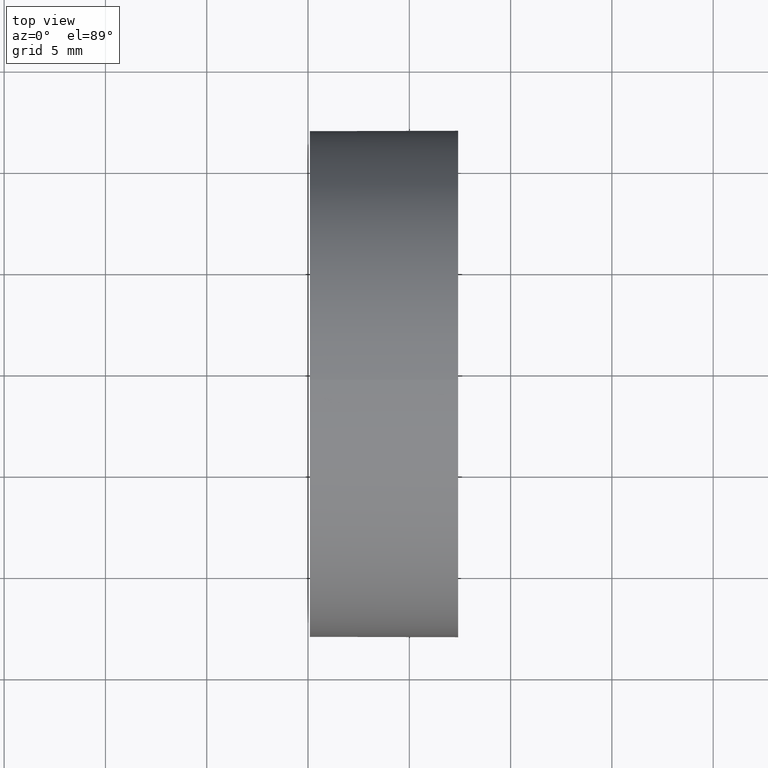
[diagram: clean part render]
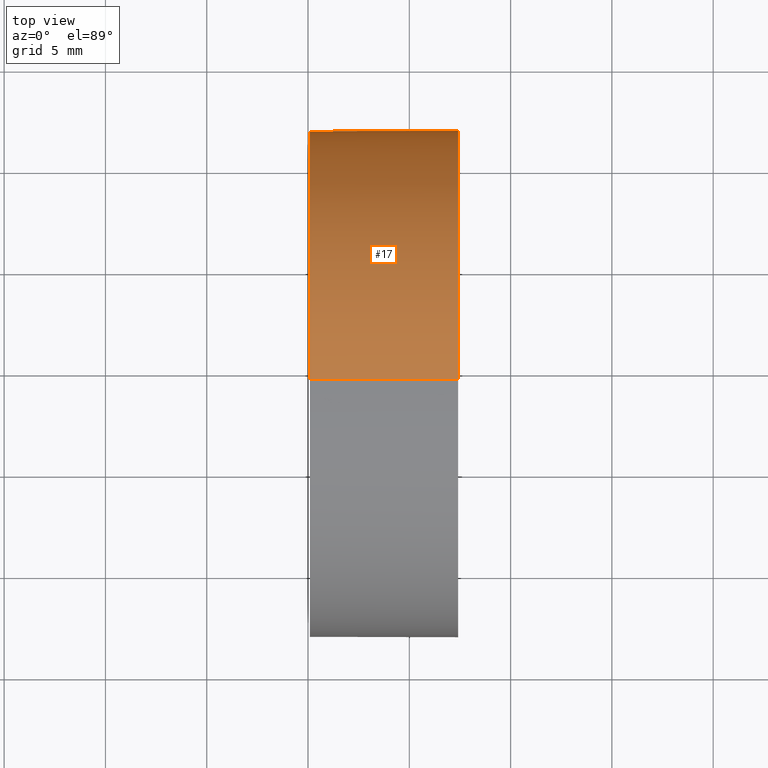
[diagram: same view with one face highlighted and labeled with its STEP entity id]
A machine part, top view. The second image highlights one B-rep face of the part: STEP entity #17.
In plain terms, the highlighted cylindrical surface (partial cylindrical patch) has radius 12.5 mm, axis along (-1, -0, -0).
Its self-contained STEP definition (entity closure, byte-faithful):
#5 = DIRECTION ( 'NONE',  ( 0.0000000000000000000, 0.0000000000000000000, 1.000000000000000000 ) ) ;
#6 = ORIENTED_EDGE ( 'NONE', *, *, #143, .T. ) ;
#13 = DIRECTION ( 'NONE',  ( -1.000000000000000000, -0.0000000000000000000, -0.0000000000000000000 ) ) ;
#14 = CARTESIAN_POINT ( 'NONE',  ( 108.9851430021651000, 69.37802112337243400, 0.0000000000000000000 ) ) ;
#17 = ADVANCED_FACE ( 'NONE', ( #103 ), #94, .T. ) ;
#19 = DIRECTION ( 'NONE',  ( -1.000000000000000000, -0.0000000000000000000, -0.0000000000000000000 ) ) ;
#21 = CARTESIAN_POINT ( 'NONE',  ( 108.9851430021651000, 69.37802112337243400, 12.50000000000001800 ) ) ;
#24 = VERTEX_POINT ( 'NONE', #185 ) ;
#27 = LINE ( 'NONE', #21, #181 ) ;
#29 = EDGE_CURVE ( 'NONE', #179, #39, #60, .T. ) ;
#34 = CARTESIAN_POINT ( 'NONE',  ( 122.4091825781601600, 69.37802112337243400, 0.0000000000000000000 ) ) ;
#39 = VERTEX_POINT ( 'NONE', #56 ) ;
#42 = DIRECTION ( 'NONE',  ( 0.0000000000000000000, 0.0000000000000000000, 1.000000000000000000 ) ) ;
#50 = VECTOR ( 'NONE', #67, 1000.000000000000000 ) ;
#56 = CARTESIAN_POINT ( 'NONE',  ( 122.4091825781601700, 81.87802112337246300, 0.0000000000000000000 ) ) ;
#60 = CIRCLE ( 'NONE', #176, 12.50000000000003900 ) ;
#67 = DIRECTION ( 'NONE',  ( -1.000000000000000000, -0.0000000000000000000, -0.0000000000000000000 ) ) ;
#74 = EDGE_LOOP ( 'NONE', ( #6, #96, #104, #142, #81 ) ) ;
#76 = CARTESIAN_POINT ( 'NONE',  ( 115.0926555349195200, 69.37802112337243400, 0.0000000000000000000 ) ) ;
#81 = ORIENTED_EDGE ( 'NONE', *, *, #29, .T. ) ;
#82 = CARTESIAN_POINT ( 'NONE',  ( 115.0926555349195200, 69.37802112337243400, -12.49999999999999600 ) ) ;
#89 = DIRECTION ( 'NONE',  ( 0.0000000000000000000, 0.0000000000000000000, 1.000000000000000000 ) ) ;
#94 = CYLINDRICAL_SURFACE ( 'NONE', #158, 12.50000000000001800 ) ;
#96 = ORIENTED_EDGE ( 'NONE', *, *, #172, .T. ) ;
#99 = EDGE_CURVE ( 'NONE', #146, #186, #114, .T. ) ;
#101 = DIRECTION ( 'NONE',  ( 0.0000000000000000000, 0.0000000000000000000, 1.000000000000000000 ) ) ;
#103 = FACE_OUTER_BOUND ( 'NONE', #74, .T. ) ;
#104 = ORIENTED_EDGE ( 'NONE', *, *, #99, .F. ) ;
#109 = DIRECTION ( 'NONE',  ( -1.000000000000000000, -0.0000000000000000000, -0.0000000000000000000 ) ) ;
#112 = CARTESIAN_POINT ( 'NONE',  ( 122.4091825781601600, 69.37802112337243400, 12.50000000000003700 ) ) ;
#114 = CIRCLE ( 'NONE', #135, 12.49999999999999600 ) ;
#123 = CARTESIAN_POINT ( 'NONE',  ( 115.0926555349195200, 69.37802112337243400, 12.49999999999999600 ) ) ;
#128 = CARTESIAN_POINT ( 'NONE',  ( 108.9851430021651000, 69.37802112337243400, -12.50000000000001800 ) ) ;
#135 = AXIS2_PLACEMENT_3D ( 'NONE', #76, #109, #89 ) ;
#142 = ORIENTED_EDGE ( 'NONE', *, *, #155, .F. ) ;
#143 = EDGE_CURVE ( 'NONE', #39, #24, #170, .T. ) ;
#146 = VERTEX_POINT ( 'NONE', #123 ) ;
#155 = EDGE_CURVE ( 'NONE', #179, #146, #27, .T. ) ;
#158 = AXIS2_PLACEMENT_3D ( 'NONE', #14, #13, #101 ) ;
#159 = CARTESIAN_POINT ( 'NONE',  ( 122.4091825781601600, 69.37802112337243400, 0.0000000000000000000 ) ) ;
#166 = DIRECTION ( 'NONE',  ( -1.000000000000000000, -0.0000000000000000000, -0.0000000000000000000 ) ) ;
#167 = AXIS2_PLACEMENT_3D ( 'NONE', #34, #19, #5 ) ;
#170 = CIRCLE ( 'NONE', #167, 12.50000000000003900 ) ;
#172 = EDGE_CURVE ( 'NONE', #24, #186, #174, .T. ) ;
#173 = DIRECTION ( 'NONE',  ( -1.000000000000000000, -0.0000000000000000000, -0.0000000000000000000 ) ) ;
#174 = LINE ( 'NONE', #128, #50 ) ;
#176 = AXIS2_PLACEMENT_3D ( 'NONE', #159, #173, #42 ) ;
#179 = VERTEX_POINT ( 'NONE', #112 ) ;
#181 = VECTOR ( 'NONE', #166, 1000.000000000000000 ) ;
#185 = CARTESIAN_POINT ( 'NONE',  ( 122.4091825781601600, 69.37802112337243400, -12.50000000000003700 ) ) ;
#186 = VERTEX_POINT ( 'NONE', #82 ) ;